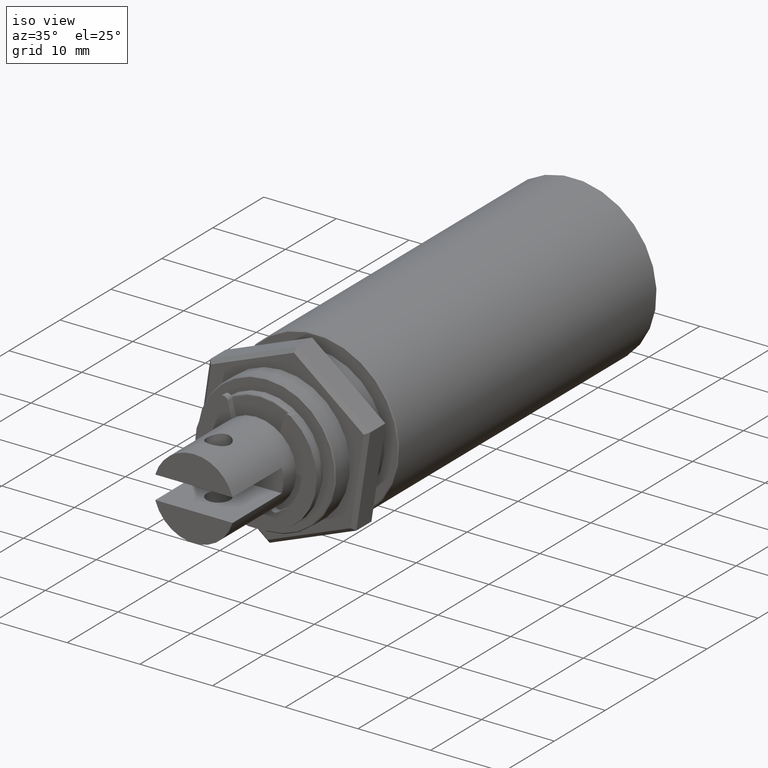
[diagram: clean part render]
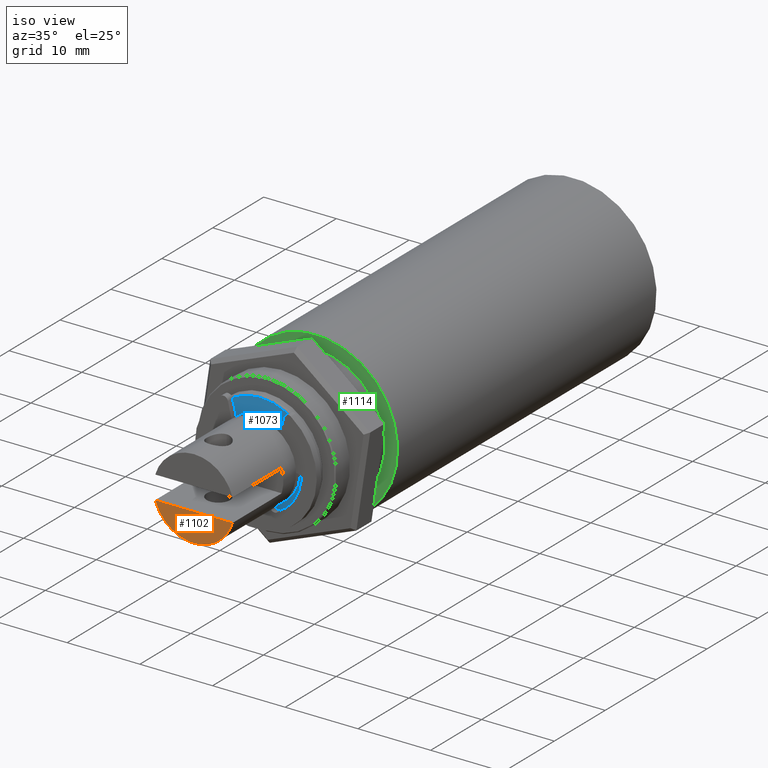
[diagram: same view with three faces highlighted in distinct colors, each labeled with its STEP entity id]
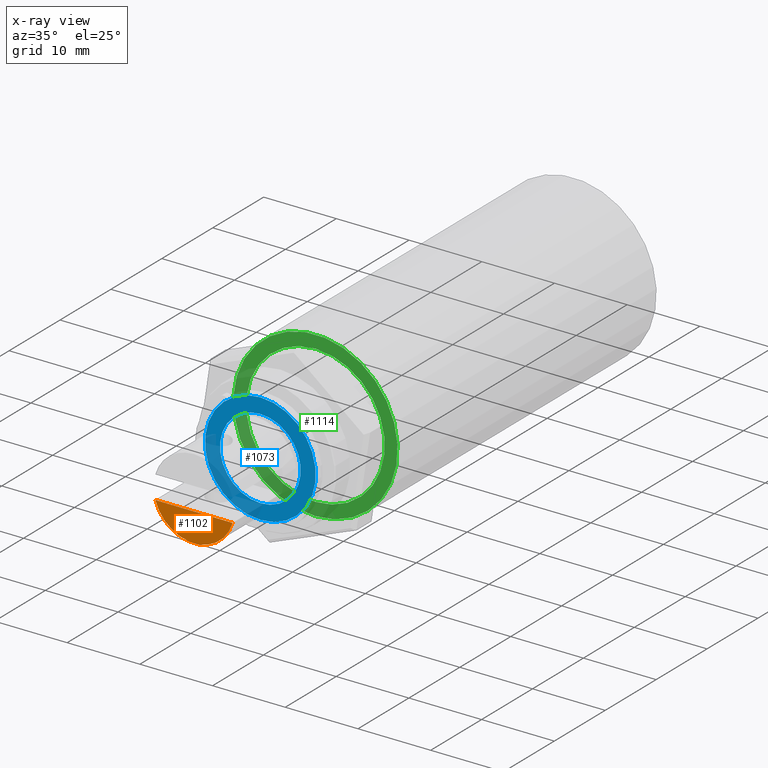
[diagram: x-ray of the same camera — body ghosted, the three highlighted faces saturated]
A machine part, iso view with three faces highlighted in distinct colors.
The next image is the same camera in x-ray (body ghosted, the three faces saturated) — at least one of them is partly hidden behind the body in this view.
Their STEP definitions:

[orange] entity #1102 — the highlighted planar face has unit normal (0, 1, -0).
#93=CIRCLE('',#1269,0.0055499);
#363=ORIENTED_EDGE('',*,*,#519,.T.);
#364=ORIENTED_EDGE('',*,*,#528,.T.);
#519=EDGE_CURVE('',#620,#619,#93,.T.);
#528=EDGE_CURVE('',#619,#620,#720,.T.);
#619=VERTEX_POINT('',#1915);
#620=VERTEX_POINT('',#1917);
#720=LINE('',#1938,#800);
#800=VECTOR('',#1586,1.);
#869=EDGE_LOOP('',(#363,#364));
#972=FACE_BOUND('',#869,.T.);
#1040=PLANE('',#1279);
#1102=ADVANCED_FACE('',(#972),#1040,.F.);
#1269=AXIS2_PLACEMENT_3D('',#1916,#1561,#1562);
#1279=AXIS2_PLACEMENT_3D('',#1937,#1584,#1585);
#1561=DIRECTION('',(0.,0.,-1.));
#1562=DIRECTION('',(-1.,0.,0.));
#1584=DIRECTION('',(0.,0.,1.));
#1585=DIRECTION('',(1.,0.,0.));
#1586=DIRECTION('',(0.,1.,0.));
#1915=CARTESIAN_POINT('',(0.0015875,-0.00531801031965905,-0.014224));
#1916=CARTESIAN_POINT('',(0.,0.,-0.014224));
#1917=CARTESIAN_POINT('',(0.0015875,0.00531801031965905,-0.014224));
#1937=CARTESIAN_POINT('',(0.00277495,0.,-0.014224));
#1938=CARTESIAN_POINT('',(0.0015875,0.,-0.014224));

[blue] entity #1073 — the highlighted planar face has unit normal (-0, -1, 0).
#63=CIRCLE('',#1212,0.0055499);
#64=CIRCLE('',#1214,0.00762);
#229=ORIENTED_EDGE('',*,*,#456,.T.);
#230=ORIENTED_EDGE('',*,*,#455,.F.);
#455=EDGE_CURVE('',#573,#573,#63,.T.);
#456=EDGE_CURVE('',#574,#574,#64,.T.);
#573=VERTEX_POINT('',#1759);
#574=VERTEX_POINT('',#1762);
#831=EDGE_LOOP('',(#229));
#832=EDGE_LOOP('',(#230));
#933=FACE_BOUND('',#831,.T.);
#934=FACE_BOUND('',#832,.T.);
#1030=PLANE('',#1213);
#1073=ADVANCED_FACE('',(#933,#934),#1030,.T.);
#1212=AXIS2_PLACEMENT_3D('',#1758,#1415,#1416);
#1213=AXIS2_PLACEMENT_3D('',#1760,#1417,#1418);
#1214=AXIS2_PLACEMENT_3D('',#1761,#1419,#1420);
#1415=DIRECTION('',(0.,0.,-1.));
#1416=DIRECTION('',(-1.,0.,0.));
#1417=DIRECTION('',(0.,0.,-1.));
#1418=DIRECTION('',(-1.,0.,0.));
#1419=DIRECTION('',(0.,0.,-1.));
#1420=DIRECTION('',(-1.,0.,0.));
#1758=CARTESIAN_POINT('',(0.,0.,-0.00117496980637312));
#1759=CARTESIAN_POINT('',(-0.0055499,0.,-0.00117496980637312));
#1760=CARTESIAN_POINT('',(0.00671195,0.,-0.00117496980637312));
#1761=CARTESIAN_POINT('',(0.,0.,-0.00117496980637312));
#1762=CARTESIAN_POINT('',(-0.00762,0.,-0.00117496980637312));

[green] entity #1114 — the highlighted planar face has unit normal (0, 1, -0).
#109=CIRCLE('',#1302,0.009525);
#110=CIRCLE('',#1304,0.011303);
#395=ORIENTED_EDGE('',*,*,#542,.T.);
#396=ORIENTED_EDGE('',*,*,#541,.F.);
#541=EDGE_CURVE('',#638,#638,#109,.T.);
#542=EDGE_CURVE('',#639,#639,#110,.F.);
#638=VERTEX_POINT('',#1974);
#639=VERTEX_POINT('',#1977);
#891=EDGE_LOOP('',(#395));
#892=EDGE_LOOP('',(#396));
#994=FACE_BOUND('',#891,.T.);
#995=FACE_BOUND('',#892,.T.);
#1048=PLANE('',#1303);
#1114=ADVANCED_FACE('',(#994,#995),#1048,.F.);
#1302=AXIS2_PLACEMENT_3D('',#1973,#1633,#1634);
#1303=AXIS2_PLACEMENT_3D('',#1975,#1635,#1636);
#1304=AXIS2_PLACEMENT_3D('',#1976,#1637,#1638);
#1633=DIRECTION('',(0.,0.,-1.));
#1634=DIRECTION('',(-1.,0.,0.));
#1635=DIRECTION('',(0.,0.,1.));
#1636=DIRECTION('',(1.,0.,0.));
#1637=DIRECTION('',(0.,0.,1.));
#1638=DIRECTION('',(1.,0.,0.));
#1973=CARTESIAN_POINT('',(0.,0.,0.009652));
#1974=CARTESIAN_POINT('',(-0.009525,0.,0.009652));
#1975=CARTESIAN_POINT('',(0.0104775,0.,0.009652));
#1976=CARTESIAN_POINT('',(0.,0.,0.009652));
#1977=CARTESIAN_POINT('',(0.011303,0.,0.009652));